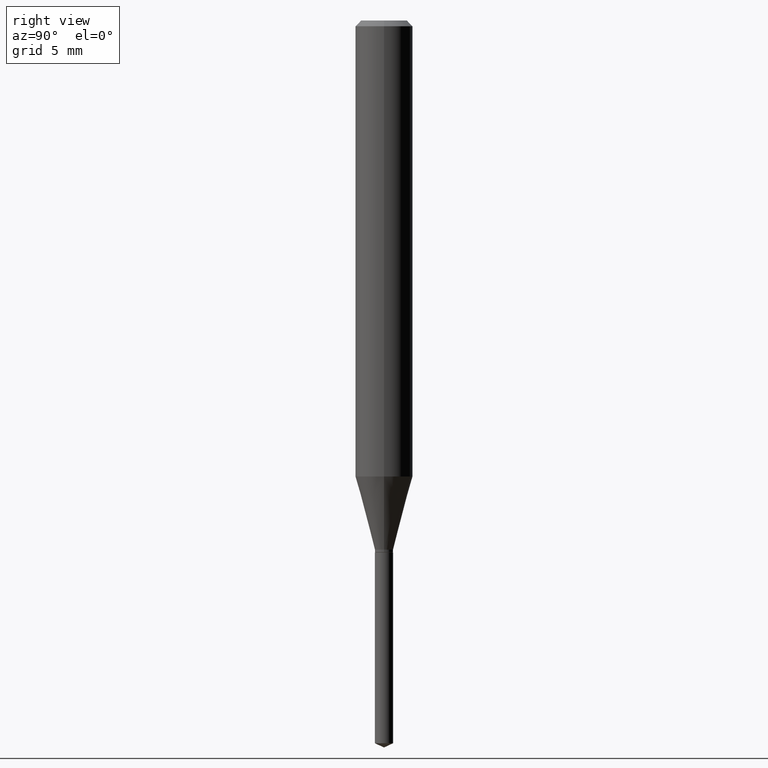
[diagram: clean part render]
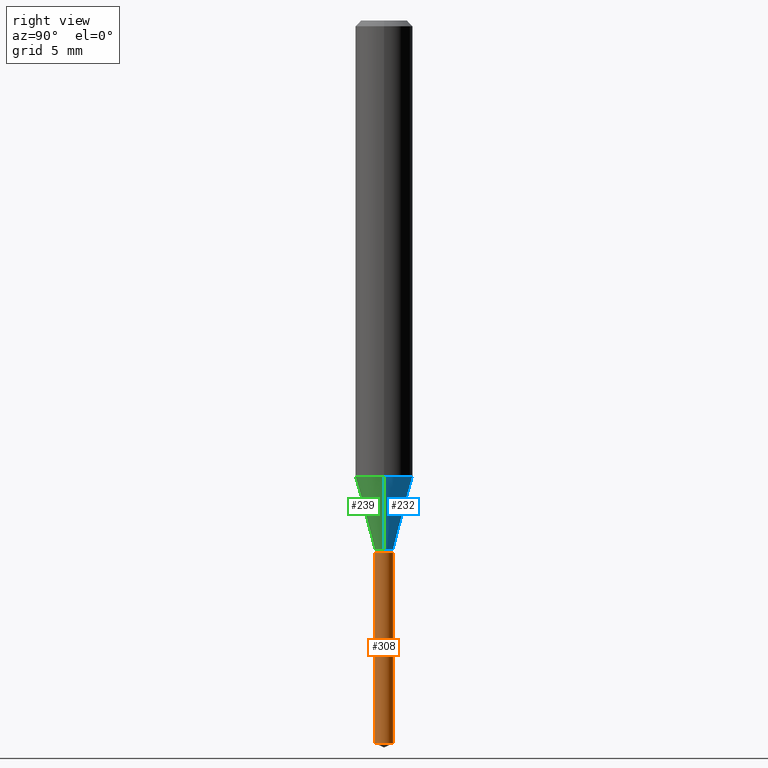
[diagram: same view with three faces highlighted in distinct colors, each labeled with its STEP entity id]
A machine part, right view with three faces highlighted in distinct colors.
Their STEP definitions:

[orange] entity #308 — the highlighted cylindrical surface (edge-blend (fillet) strip) has radius 0.475 mm, axis along (-0, 0, 1).
#6 = CARTESIAN_POINT ( 'NONE',  ( -1.305814020727064035E-16, -0.01870000000000382467, -1.094499999999999806 ) ) ;
#11 = VERTEX_POINT ( 'NONE', #477 ) ;
#30 = CIRCLE ( 'NONE', #271, 0.01870000000000000134 ) ;
#55 = CYLINDRICAL_SURFACE ( 'NONE', #94, 0.01870000000000000134 ) ;
#57 = VERTEX_POINT ( 'NONE', #108 ) ;
#65 = VERTEX_POINT ( 'NONE', #77 ) ;
#69 = VERTEX_POINT ( 'NONE', #410 ) ;
#77 = CARTESIAN_POINT ( 'NONE',  ( -1.305814020726967892E-16, -0.01870000000000519164, -1.487380046792501576 ) ) ;
#94 = AXIS2_PLACEMENT_3D ( 'NONE', #203, #334, #112 ) ;
#108 = CARTESIAN_POINT ( 'NONE',  ( 1.328714915871751552E-16, 0.01869999999999617801, -1.094499999999999806 ) ) ;
#112 = DIRECTION ( 'NONE',  ( -6.982962677686265922E-15, -1.000000000000000000, 0.000000000000000000 ) ) ;
#141 = ORIENTED_EDGE ( 'NONE', *, *, #152, .F. ) ;
#150 = DIRECTION ( 'NONE',  ( -2.445470214571802396E-29, 3.491479321953280158E-15, 1.000000000000000000 ) ) ;
#152 = EDGE_CURVE ( 'NONE', #65, #69, #453, .T. ) ;
#158 = DIRECTION ( 'NONE',  ( -2.445470214571802396E-29, 3.491479321953280158E-15, 1.000000000000000000 ) ) ;
#164 = VECTOR ( 'NONE', #150, 39.37007874015748143 ) ;
#170 = CARTESIAN_POINT ( 'NONE',  ( 3.637342060700270399E-29, -5.193158884747879625E-15, -1.487380046792501576 ) ) ;
#192 = ORIENTED_EDGE ( 'NONE', *, *, #398, .T. ) ;
#203 = CARTESIAN_POINT ( 'NONE',  ( 2.676565608369631794E-29, -3.821426325363822773E-15, -1.094499999999999806 ) ) ;
#215 = CIRCLE ( 'NONE', #378, 0.01870000000000000134 ) ;
#229 = EDGE_CURVE ( 'NONE', #69, #57, #30, .T. ) ;
#269 = DIRECTION ( 'NONE',  ( -6.982962677686265922E-15, -1.000000000000000000, 0.000000000000000000 ) ) ;
#271 = AXIS2_PLACEMENT_3D ( 'NONE', #310, #448, #269 ) ;
#280 = DIRECTION ( 'NONE',  ( -2.445470214571802116E-29, 3.491479321953280158E-15, 1.000000000000000000 ) ) ;
#284 = EDGE_CURVE ( 'NONE', #65, #11, #215, .T. ) ;
#303 = LINE ( 'NONE', #386, #389 ) ;
#308 = ADVANCED_FACE ( 'NONE', ( #392 ), #55, .T. ) ;
#310 = CARTESIAN_POINT ( 'NONE',  ( 2.676565608369631794E-29, -3.821426325363822773E-15, -1.094499999999999806 ) ) ;
#314 = ORIENTED_EDGE ( 'NONE', *, *, #284, .T. ) ;
#328 = DIRECTION ( 'NONE',  ( -6.982962677686265922E-15, -1.000000000000000000, 0.000000000000000000 ) ) ;
#334 = DIRECTION ( 'NONE',  ( -2.445470214571802116E-29, 3.491479321953280158E-15, 1.000000000000000000 ) ) ;
#350 = EDGE_LOOP ( 'NONE', ( #314, #192, #469, #141 ) ) ;
#378 = AXIS2_PLACEMENT_3D ( 'NONE', #170, #280, #328 ) ;
#386 = CARTESIAN_POINT ( 'NONE',  ( 1.328714915871654916E-16, 0.01869999999999617801, -1.094499999999999806 ) ) ;
#389 = VECTOR ( 'NONE', #158, 39.37007874015748143 ) ;
#392 = FACE_OUTER_BOUND ( 'NONE', #350, .T. ) ;
#398 = EDGE_CURVE ( 'NONE', #11, #57, #303, .T. ) ;
#410 = CARTESIAN_POINT ( 'NONE',  ( -1.305814020727064035E-16, -0.01870000000000382467, -1.094499999999999806 ) ) ;
#448 = DIRECTION ( 'NONE',  ( -2.445470214571802116E-29, 3.491479321953280158E-15, 1.000000000000000000 ) ) ;
#453 = LINE ( 'NONE', #6, #164 ) ;
#469 = ORIENTED_EDGE ( 'NONE', *, *, #229, .F. ) ;
#477 = CARTESIAN_POINT ( 'NONE',  ( 1.328714915871750812E-16, 0.01869999999999480758, -1.487380046792501576 ) ) ;

[blue] entity #232 — the highlighted conical surface has half-angle 15 deg.
#26 = ORIENTED_EDGE ( 'NONE', *, *, #296, .T. ) ;
#32 = ORIENTED_EDGE ( 'NONE', *, *, #454, .F. ) ;
#35 = EDGE_CURVE ( 'NONE', #357, #471, #332, .T. ) ;
#41 = DIRECTION ( 'NONE',  ( 1.000000000000000000, -6.982962677686267499E-15, 0.000000000000000000 ) ) ;
#43 = CARTESIAN_POINT ( 'NONE',  ( -0.01870000000000000134, -3.677905815693212907E-15, -1.088899999999999979 ) ) ;
#44 = AXIS2_PLACEMENT_3D ( 'NONE', #126, #487, #41 ) ;
#53 = VECTOR ( 'NONE', #236, 39.37007874015747433 ) ;
#62 = AXIS2_PLACEMENT_3D ( 'NONE', #171, #374, #279 ) ;
#85 = CONICAL_SURFACE ( 'NONE', #345, 0.01870000000000000134, 0.2617993877991500740 ) ;
#87 = DIRECTION ( 'NONE',  ( -2.445468806185136597E-29, 3.491481338843145583E-15, 1.000000000000000000 ) ) ;
#88 = EDGE_CURVE ( 'NONE', #357, #211, #115, .T. ) ;
#90 = VERTEX_POINT ( 'NONE', #181 ) ;
#115 = CIRCLE ( 'NONE', #62, 0.01870000000000000134 ) ;
#126 = CARTESIAN_POINT ( 'NONE',  ( 2.294612114893132862E-29, -3.276097964844067539E-15, -0.9383117499145957607 ) ) ;
#127 = FACE_OUTER_BOUND ( 'NONE', #159, .T. ) ;
#144 = LINE ( 'NONE', #286, #53 ) ;
#145 = CARTESIAN_POINT ( 'NONE',  ( 0.01870000000000000134, -3.932455431939034345E-15, -1.088899999999999979 ) ) ;
#148 = CIRCLE ( 'NONE', #44, 0.05905000000000010935 ) ;
#154 = ORIENTED_EDGE ( 'NONE', *, *, #88, .T. ) ;
#159 = EDGE_LOOP ( 'NONE', ( #154, #26, #32, #306 ) ) ;
#171 = CARTESIAN_POINT ( 'NONE',  ( 2.662870983054994996E-29, -3.801874029866301144E-15, -1.088899999999999979 ) ) ;
#173 = CARTESIAN_POINT ( 'NONE',  ( 0.01870000000000000134, -3.932455431939034345E-15, -1.088899999999999979 ) ) ;
#181 = CARTESIAN_POINT ( 'NONE',  ( -0.05905000000000010935, -2.856522479377728046E-15, -0.9383117499145957607 ) ) ;
#211 = VERTEX_POINT ( 'NONE', #43 ) ;
#232 = ADVANCED_FACE ( 'NONE', ( #127 ), #85, .T. ) ;
#236 = DIRECTION ( 'NONE',  ( -0.2588190451025213501, 5.211531920934551042E-15, 0.9659258262890682012 ) ) ;
#279 = DIRECTION ( 'NONE',  ( 1.000000000000000000, -6.982962677686274599E-15, 0.000000000000000000 ) ) ;
#286 = CARTESIAN_POINT ( 'NONE',  ( -0.01870000000000000134, -3.669002538279162844E-15, -1.088899999999999979 ) ) ;
#288 = DIRECTION ( 'NONE',  ( 0.2588190451025213501, 1.565188264969621968E-15, 0.9659258262890682012 ) ) ;
#296 = EDGE_CURVE ( 'NONE', #211, #90, #144, .T. ) ;
#306 = ORIENTED_EDGE ( 'NONE', *, *, #35, .F. ) ;
#332 = LINE ( 'NONE', #145, #460 ) ;
#342 = CARTESIAN_POINT ( 'NONE',  ( 0.05905000000000010935, -3.688441910961442459E-15, -0.9383117499145957607 ) ) ;
#345 = AXIS2_PLACEMENT_3D ( 'NONE', #425, #87, #387 ) ;
#357 = VERTEX_POINT ( 'NONE', #173 ) ;
#374 = DIRECTION ( 'NONE',  ( -2.445468806185136597E-29, 3.491481338843145583E-15, 1.000000000000000000 ) ) ;
#387 = DIRECTION ( 'NONE',  ( 1.000000000000000000, -6.982962677686274599E-15, 0.000000000000000000 ) ) ;
#425 = CARTESIAN_POINT ( 'NONE',  ( 2.662870983054994996E-29, -3.801874029866301144E-15, -1.088899999999999979 ) ) ;
#454 = EDGE_CURVE ( 'NONE', #471, #90, #148, .T. ) ;
#460 = VECTOR ( 'NONE', #288, 39.37007874015747433 ) ;
#471 = VERTEX_POINT ( 'NONE', #342 ) ;
#487 = DIRECTION ( 'NONE',  ( -2.445468806185136597E-29, 3.491481338843145583E-15, 1.000000000000000000 ) ) ;

[green] entity #239 — the highlighted conical surface has half-angle 15 deg.
#35 = EDGE_CURVE ( 'NONE', #357, #471, #332, .T. ) ;
#43 = CARTESIAN_POINT ( 'NONE',  ( -0.01870000000000000134, -3.677905815693212907E-15, -1.088899999999999979 ) ) ;
#46 = EDGE_LOOP ( 'NONE', ( #394, #367, #385, #315 ) ) ;
#53 = VECTOR ( 'NONE', #236, 39.37007874015747433 ) ;
#74 = AXIS2_PLACEMENT_3D ( 'NONE', #194, #272, #119 ) ;
#90 = VERTEX_POINT ( 'NONE', #181 ) ;
#103 = CARTESIAN_POINT ( 'NONE',  ( 2.662870983054994996E-29, -3.801874029866301144E-15, -1.088899999999999979 ) ) ;
#119 = DIRECTION ( 'NONE',  ( 1.000000000000000000, -6.982962677686267499E-15, 0.000000000000000000 ) ) ;
#144 = LINE ( 'NONE', #286, #53 ) ;
#145 = CARTESIAN_POINT ( 'NONE',  ( 0.01870000000000000134, -3.932455431939034345E-15, -1.088899999999999979 ) ) ;
#157 = AXIS2_PLACEMENT_3D ( 'NONE', #103, #287, #331 ) ;
#173 = CARTESIAN_POINT ( 'NONE',  ( 0.01870000000000000134, -3.932455431939034345E-15, -1.088899999999999979 ) ) ;
#181 = CARTESIAN_POINT ( 'NONE',  ( -0.05905000000000010935, -2.856522479377728046E-15, -0.9383117499145957607 ) ) ;
#194 = CARTESIAN_POINT ( 'NONE',  ( 2.294612114893132862E-29, -3.276097964844067539E-15, -0.9383117499145957607 ) ) ;
#199 = CONICAL_SURFACE ( 'NONE', #301, 0.01870000000000000134, 0.2617993877991500740 ) ;
#211 = VERTEX_POINT ( 'NONE', #43 ) ;
#236 = DIRECTION ( 'NONE',  ( -0.2588190451025213501, 5.211531920934551042E-15, 0.9659258262890682012 ) ) ;
#239 = ADVANCED_FACE ( 'NONE', ( #319 ), #199, .T. ) ;
#244 = CARTESIAN_POINT ( 'NONE',  ( 2.662870983054994996E-29, -3.801874029866301144E-15, -1.088899999999999979 ) ) ;
#272 = DIRECTION ( 'NONE',  ( -2.445468806185136597E-29, 3.491481338843145583E-15, 1.000000000000000000 ) ) ;
#286 = CARTESIAN_POINT ( 'NONE',  ( -0.01870000000000000134, -3.669002538279162844E-15, -1.088899999999999979 ) ) ;
#287 = DIRECTION ( 'NONE',  ( -2.445468806185136597E-29, 3.491481338843145583E-15, 1.000000000000000000 ) ) ;
#288 = DIRECTION ( 'NONE',  ( 0.2588190451025213501, 1.565188264969621968E-15, 0.9659258262890682012 ) ) ;
#296 = EDGE_CURVE ( 'NONE', #211, #90, #144, .T. ) ;
#301 = AXIS2_PLACEMENT_3D ( 'NONE', #244, #473, #366 ) ;
#315 = ORIENTED_EDGE ( 'NONE', *, *, #429, .F. ) ;
#319 = FACE_OUTER_BOUND ( 'NONE', #46, .T. ) ;
#329 = CIRCLE ( 'NONE', #157, 0.01870000000000000134 ) ;
#331 = DIRECTION ( 'NONE',  ( 1.000000000000000000, -6.982962677686274599E-15, 0.000000000000000000 ) ) ;
#332 = LINE ( 'NONE', #145, #460 ) ;
#342 = CARTESIAN_POINT ( 'NONE',  ( 0.05905000000000010935, -3.688441910961442459E-15, -0.9383117499145957607 ) ) ;
#357 = VERTEX_POINT ( 'NONE', #173 ) ;
#358 = EDGE_CURVE ( 'NONE', #211, #357, #329, .T. ) ;
#366 = DIRECTION ( 'NONE',  ( 1.000000000000000000, -6.982962677686274599E-15, 0.000000000000000000 ) ) ;
#367 = ORIENTED_EDGE ( 'NONE', *, *, #358, .T. ) ;
#385 = ORIENTED_EDGE ( 'NONE', *, *, #35, .T. ) ;
#394 = ORIENTED_EDGE ( 'NONE', *, *, #296, .F. ) ;
#429 = EDGE_CURVE ( 'NONE', #90, #471, #430, .T. ) ;
#430 = CIRCLE ( 'NONE', #74, 0.05905000000000010935 ) ;
#460 = VECTOR ( 'NONE', #288, 39.37007874015747433 ) ;
#471 = VERTEX_POINT ( 'NONE', #342 ) ;
#473 = DIRECTION ( 'NONE',  ( -2.445468806185136597E-29, 3.491481338843145583E-15, 1.000000000000000000 ) ) ;